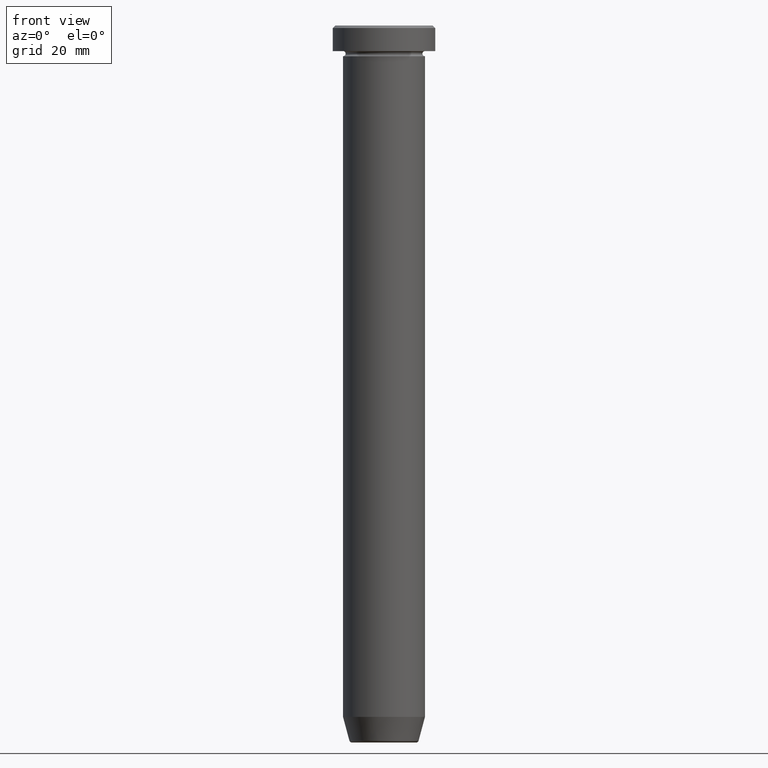
[diagram: clean part render]
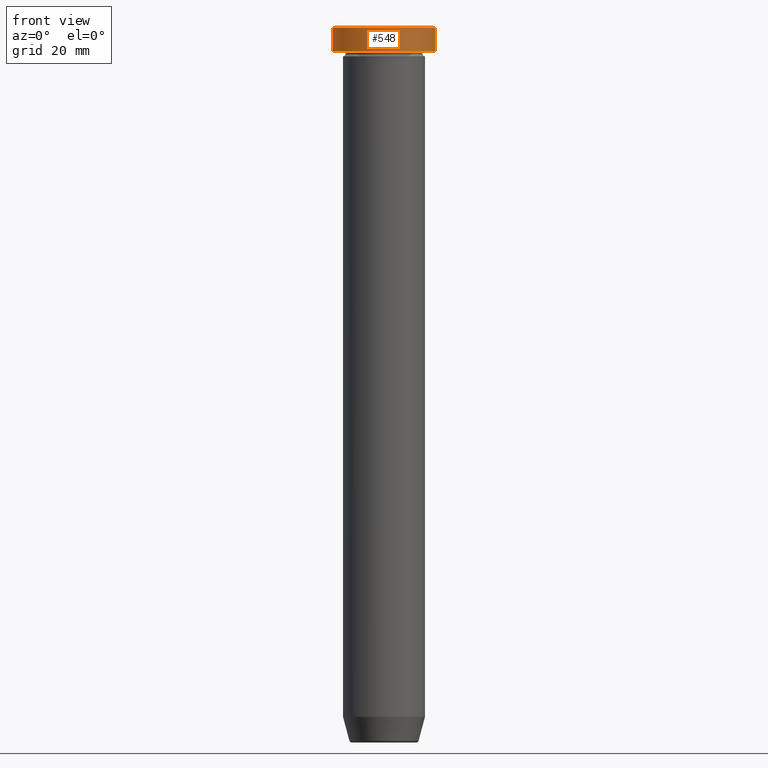
[diagram: same view with one face highlighted and labeled with its STEP entity id]
A machine part, front view. The second image highlights one B-rep face of the part: STEP entity #548.
In plain terms, the highlighted cylindrical surface (partial cylindrical patch) has radius 10 mm, axis along (-0, -0, 1).
Its self-contained STEP definition (entity closure, byte-faithful):
#2 = DIRECTION ( 'NONE',  ( -0.000000000000000000, -0.000000000000000000, 1.000000000000000000 ) ) ;
#21 = VECTOR ( 'NONE', #2, 1000.000000000000000 ) ;
#27 = DIRECTION ( 'NONE',  ( -0.000000000000000000, -0.000000000000000000, 1.000000000000000000 ) ) ;
#34 = VERTEX_POINT ( 'NONE', #132 ) ;
#77 = DIRECTION ( 'NONE',  ( 1.000000000000000000, 0.000000000000000000, 0.000000000000000000 ) ) ;
#78 = EDGE_CURVE ( 'NONE', #220, #90, #475, .T. ) ;
#90 = VERTEX_POINT ( 'NONE', #242 ) ;
#96 = DIRECTION ( 'NONE',  ( 0.000000000000000000, 0.000000000000000000, -1.000000000000000000 ) ) ;
#132 = CARTESIAN_POINT ( 'NONE',  ( -10.00000000000000000, 1.224646799147353256E-15, -0.4999999999999952260 ) ) ;
#146 = CARTESIAN_POINT ( 'NONE',  ( -10.00000000000000000, 1.224646799147353256E-15, -5.000000000000000000 ) ) ;
#148 = VECTOR ( 'NONE', #27, 1000.000000000000000 ) ;
#149 = VERTEX_POINT ( 'NONE', #146 ) ;
#153 = ORIENTED_EDGE ( 'NONE', *, *, #78, .T. ) ;
#162 = CIRCLE ( 'NONE', #597, 10.00000000000000000 ) ;
#166 = EDGE_CURVE ( 'NONE', #149, #34, #361, .T. ) ;
#218 = CIRCLE ( 'NONE', #487, 10.00000000000000000 ) ;
#220 = VERTEX_POINT ( 'NONE', #389 ) ;
#223 = CARTESIAN_POINT ( 'NONE',  ( 0.000000000000000000, 0.000000000000000000, -5.000000000000000000 ) ) ;
#226 = ORIENTED_EDGE ( 'NONE', *, *, #489, .T. ) ;
#242 = CARTESIAN_POINT ( 'NONE',  ( 10.00000000000000000, 0.000000000000000000, -0.4999999999999952260 ) ) ;
#248 = CYLINDRICAL_SURFACE ( 'NONE', #399, 10.00000000000000000 ) ;
#265 = DIRECTION ( 'NONE',  ( 1.000000000000000000, 0.000000000000000000, 0.000000000000000000 ) ) ;
#284 = DIRECTION ( 'NONE',  ( 1.000000000000000000, 0.000000000000000000, 0.000000000000000000 ) ) ;
#302 = DIRECTION ( 'NONE',  ( -0.000000000000000000, -0.000000000000000000, 1.000000000000000000 ) ) ;
#307 = CARTESIAN_POINT ( 'NONE',  ( -10.00000000000000000, 1.224646799147353256E-15, 0.000000000000000000 ) ) ;
#361 = LINE ( 'NONE', #307, #148 ) ;
#362 = EDGE_LOOP ( 'NONE', ( #367, #226, #153, #460 ) ) ;
#367 = ORIENTED_EDGE ( 'NONE', *, *, #166, .F. ) ;
#378 = CARTESIAN_POINT ( 'NONE',  ( 10.00000000000000000, 0.000000000000000000, 0.000000000000000000 ) ) ;
#389 = CARTESIAN_POINT ( 'NONE',  ( 10.00000000000000000, 0.000000000000000000, -5.000000000000000000 ) ) ;
#392 = DIRECTION ( 'NONE',  ( -0.000000000000000000, -0.000000000000000000, 1.000000000000000000 ) ) ;
#399 = AXIS2_PLACEMENT_3D ( 'NONE', #581, #302, #77 ) ;
#423 = EDGE_CURVE ( 'NONE', #90, #34, #162, .T. ) ;
#428 = CARTESIAN_POINT ( 'NONE',  ( 0.000000000000000000, 0.000000000000000000, -0.4999999999999952260 ) ) ;
#460 = ORIENTED_EDGE ( 'NONE', *, *, #423, .T. ) ;
#475 = LINE ( 'NONE', #378, #21 ) ;
#487 = AXIS2_PLACEMENT_3D ( 'NONE', #223, #392, #284 ) ;
#489 = EDGE_CURVE ( 'NONE', #149, #220, #218, .T. ) ;
#537 = FACE_OUTER_BOUND ( 'NONE', #362, .T. ) ;
#548 = ADVANCED_FACE ( 'NONE', ( #537 ), #248, .T. ) ;
#581 = CARTESIAN_POINT ( 'NONE',  ( 0.000000000000000000, 0.000000000000000000, 0.000000000000000000 ) ) ;
#597 = AXIS2_PLACEMENT_3D ( 'NONE', #428, #96, #265 ) ;